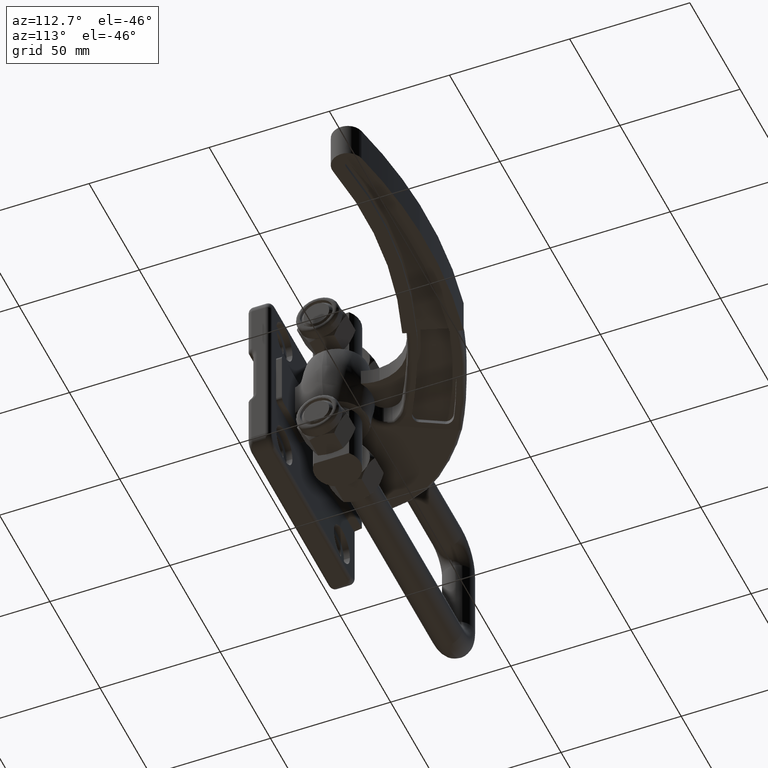
[diagram: clean part render]
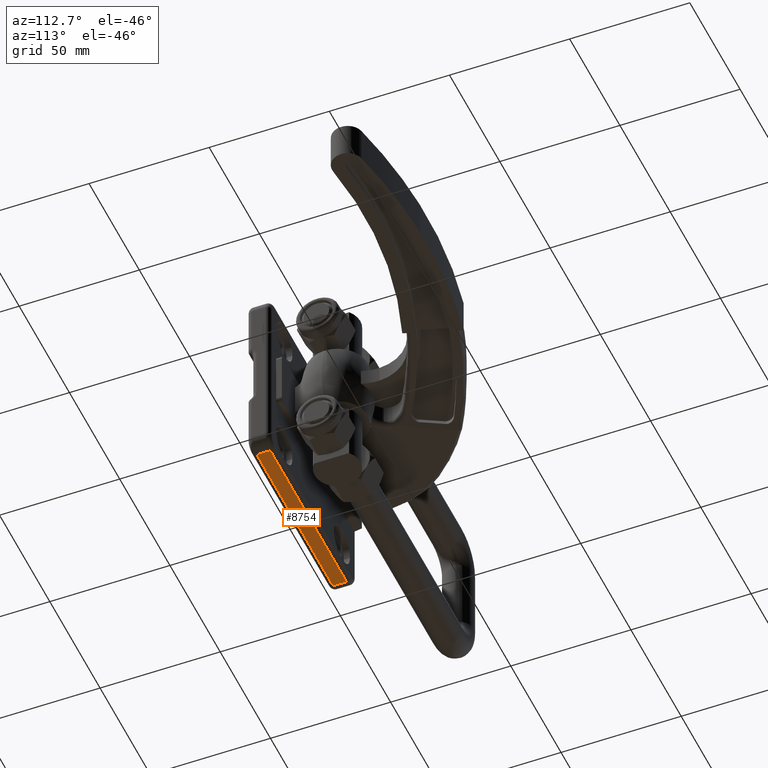
[diagram: same view with one face highlighted and labeled with its STEP entity id]
A machine part, auxiliary view. The second image highlights one B-rep face of the part: STEP entity #8754.
In plain terms, the highlighted planar face has unit normal (0, 0, 1).
Its self-contained STEP definition (entity closure, byte-faithful):
#46 = LINE ( 'NONE', #10010, #12693 ) ;
#190 = VERTEX_POINT ( 'NONE', #9429 ) ;
#268 = CARTESIAN_POINT ( 'NONE',  ( -37.89999999999995600, 2.000000000000000000, -39.69999999999999600 ) ) ;
#329 = DIRECTION ( 'NONE',  ( -1.000000000000000000, 1.734723475976807100E-018, 2.746264078063899200E-016 ) ) ;
#535 = LINE ( 'NONE', #1806, #10508 ) ;
#942 = ORIENTED_EDGE ( 'NONE', *, *, #9515, .T. ) ;
#1035 = EDGE_CURVE ( 'NONE', #11786, #190, #535, .T. ) ;
#1351 = CARTESIAN_POINT ( 'NONE',  ( 37.89999999999996300, 2.000000000000000000, -39.70000000000001000 ) ) ;
#1806 = CARTESIAN_POINT ( 'NONE',  ( 37.89999999999996300, 9.599999999999999600, -39.70000000000001000 ) ) ;
#2026 = CARTESIAN_POINT ( 'NONE',  ( 37.89999999999996300, 7.599999999999998800, -39.70000000000001000 ) ) ;
#2488 = CARTESIAN_POINT ( 'NONE',  ( 37.89999999999996300, 7.599999999999998800, -39.70000000000001000 ) ) ;
#3157 = VECTOR ( 'NONE', #329, 1000.000000000000000 ) ;
#3899 = DIRECTION ( 'NONE',  ( 1.000000000000000000, -1.734723475976807100E-018, -2.746264078063899200E-016 ) ) ;
#3954 = FACE_OUTER_BOUND ( 'NONE', #12478, .T. ) ;
#4508 = VERTEX_POINT ( 'NONE', #268 ) ;
#4912 = EDGE_CURVE ( 'NONE', #9098, #11786, #8445, .T. ) ;
#5786 = LINE ( 'NONE', #1351, #3157 ) ;
#6035 = DIRECTION ( 'NONE',  ( 1.000000000000000000, -1.734723475976807100E-018, -2.746264078063899200E-016 ) ) ;
#6841 = CARTESIAN_POINT ( 'NONE',  ( 37.89999999999996300, 9.599999999999999600, -39.70000000000001000 ) ) ;
#8098 = AXIS2_PLACEMENT_3D ( 'NONE', #6841, #9864, #3899 ) ;
#8157 = ORIENTED_EDGE ( 'NONE', *, *, #8379, .F. ) ;
#8207 = ORIENTED_EDGE ( 'NONE', *, *, #1035, .T. ) ;
#8379 = EDGE_CURVE ( 'NONE', #9098, #4508, #46, .T. ) ;
#8445 = LINE ( 'NONE', #2026, #12815 ) ;
#8754 = ADVANCED_FACE ( 'NONE', ( #3954 ), #11846, .F. ) ;
#9015 = DIRECTION ( 'NONE',  ( -1.734723475976807100E-018, -1.000000000000000000, 1.183291357831517700E-030 ) ) ;
#9098 = VERTEX_POINT ( 'NONE', #12398 ) ;
#9429 = CARTESIAN_POINT ( 'NONE',  ( 37.89999999999996300, 2.000000000000000000, -39.70000000000001000 ) ) ;
#9515 = EDGE_CURVE ( 'NONE', #190, #4508, #5786, .T. ) ;
#9864 = DIRECTION ( 'NONE',  ( 2.746264078063899200E-016, 1.380030183260025800E-030, 1.000000000000000000 ) ) ;
#10010 = CARTESIAN_POINT ( 'NONE',  ( -37.89999999999995600, 9.599999999999999600, -39.69999999999999600 ) ) ;
#10508 = VECTOR ( 'NONE', #10746, 1000.000000000000000 ) ;
#10746 = DIRECTION ( 'NONE',  ( -1.734723475976807100E-018, -1.000000000000000000, 1.183291357831517700E-030 ) ) ;
#11639 = ORIENTED_EDGE ( 'NONE', *, *, #4912, .T. ) ;
#11786 = VERTEX_POINT ( 'NONE', #2488 ) ;
#11846 = PLANE ( 'NONE',  #8098 ) ;
#12398 = CARTESIAN_POINT ( 'NONE',  ( -37.89999999999995600, 7.599999999999998800, -39.69999999999999600 ) ) ;
#12478 = EDGE_LOOP ( 'NONE', ( #8207, #942, #8157, #11639 ) ) ;
#12693 = VECTOR ( 'NONE', #9015, 1000.000000000000000 ) ;
#12815 = VECTOR ( 'NONE', #6035, 1000.000000000000000 ) ;